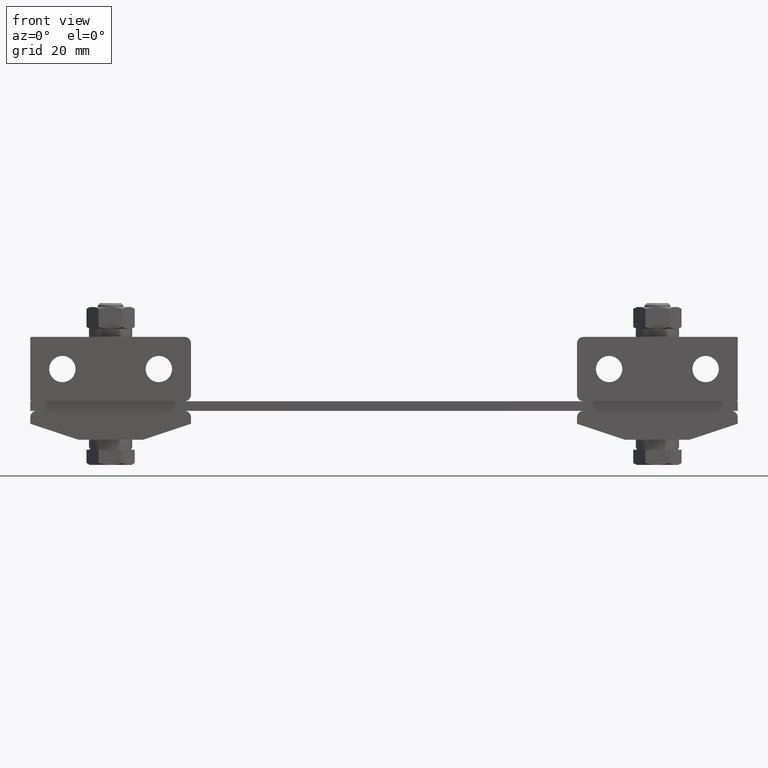
[diagram: clean part render]
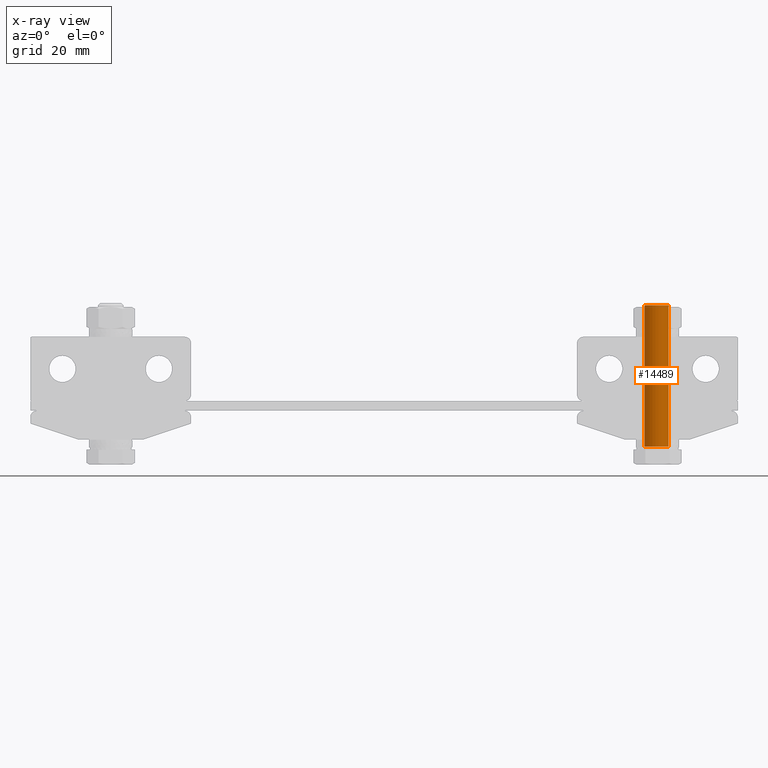
[diagram: x-ray — body ghosted, one internal face saturated and labeled with its STEP entity id]
A machine part, front view, then the same camera in x-ray: the body is ghosted and one INTERNAL B-rep face — a face not visible from any outside direction — is saturated and labeled: STEP entity #14489.
In plain terms, the highlighted cylindrical surface (edge-blend (fillet) strip) has radius 4 mm, axis along (-0, -0, -1).
Its self-contained STEP definition (entity closure, byte-faithful):
#42 = CARTESIAN_POINT ( 'NONE',  ( 81.53589838486225000, 2.000000000000002200, -11.10000000000000000 ) ) ;
#394 = CIRCLE ( 'NONE', #14449, 4.000000000000002700 ) ;
#542 = CARTESIAN_POINT ( 'NONE',  ( 88.46410161513776400, -2.000000000000000400, -16.80000000000000100 ) ) ;
#1694 = LINE ( 'NONE', #542, #11205 ) ;
#2166 = DIRECTION ( 'NONE',  ( -3.328586808465309800E-017, -1.853158120589139800E-016, -1.000000000000000000 ) ) ;
#2167 = VERTEX_POINT ( 'NONE', #3012 ) ;
#2259 = EDGE_CURVE ( 'NONE', #9517, #2701, #19715, .T. ) ;
#2701 = VERTEX_POINT ( 'NONE', #42 ) ;
#3012 = CARTESIAN_POINT ( 'NONE',  ( 88.46410161513776400, -1.999999999999995800, -11.10000000000000000 ) ) ;
#3923 = CARTESIAN_POINT ( 'NONE',  ( 85.00000000000000000, -4.632895301472329700E-016, -16.80000000000000100 ) ) ;
#5284 = FACE_OUTER_BOUND ( 'NONE', #19845, .T. ) ;
#6010 = CYLINDRICAL_SURFACE ( 'NONE', #16608, 4.000000000000002700 ) ;
#6077 = VERTEX_POINT ( 'NONE', #13130 ) ;
#8389 = EDGE_CURVE ( 'NONE', #2701, #2167, #394, .T. ) ;
#8618 = DIRECTION ( 'NONE',  ( -3.328586808465309800E-017, -1.853158120589139800E-016, -1.000000000000000000 ) ) ;
#9053 = ORIENTED_EDGE ( 'NONE', *, *, #9632, .T. ) ;
#9099 = ORIENTED_EDGE ( 'NONE', *, *, #11480, .F. ) ;
#9490 = CARTESIAN_POINT ( 'NONE',  ( 81.53589838486225000, 1.999999999999999100, -16.80000000000000100 ) ) ;
#9517 = VERTEX_POINT ( 'NONE', #17696 ) ;
#9632 = EDGE_CURVE ( 'NONE', #6077, #9517, #9638, .T. ) ;
#9638 = CIRCLE ( 'NONE', #18527, 4.000000000000002700 ) ;
#9833 = DIRECTION ( 'NONE',  ( -3.328586808465310400E-017, -1.853158120589139800E-016, -1.000000000000000000 ) ) ;
#11152 = ORIENTED_EDGE ( 'NONE', *, *, #2259, .T. ) ;
#11205 = VECTOR ( 'NONE', #9833, 1000.000000000000000 ) ;
#11361 = DIRECTION ( 'NONE',  ( 3.328586808465309800E-017, 1.853158120589139800E-016, 1.000000000000000000 ) ) ;
#11480 = EDGE_CURVE ( 'NONE', #6077, #2167, #1694, .T. ) ;
#12136 = ORIENTED_EDGE ( 'NONE', *, *, #8389, .T. ) ;
#12557 = DIRECTION ( 'NONE',  ( -3.328586808465310400E-017, -1.853158120589139800E-016, -1.000000000000000000 ) ) ;
#13130 = CARTESIAN_POINT ( 'NONE',  ( 88.46410161513776400, -1.999999999999991300, 32.80950000000000000 ) ) ;
#13267 = CARTESIAN_POINT ( 'NONE',  ( 85.00000000000000000, 8.730135248189438400E-015, 32.80950000000000000 ) ) ;
#14449 = AXIS2_PLACEMENT_3D ( 'NONE', #17706, #11361, #16060 ) ;
#14489 = ADVANCED_FACE ( 'NONE', ( #5284 ), #6010, .T. ) ;
#14797 = DIRECTION ( 'NONE',  ( 0.8660254037844388200, -0.4999999999999996700, 0.0000000000000000000 ) ) ;
#16060 = DIRECTION ( 'NONE',  ( -0.8660254037844388200, 0.4999999999999996700, 0.0000000000000000000 ) ) ;
#16608 = AXIS2_PLACEMENT_3D ( 'NONE', #3923, #8618, #17988 ) ;
#17696 = CARTESIAN_POINT ( 'NONE',  ( 81.53589838486225000, 2.000000000000004400, 32.80950000000000000 ) ) ;
#17706 = CARTESIAN_POINT ( 'NONE',  ( 85.00000000000000000, 5.930105985885740500E-016, -11.10000000000000000 ) ) ;
#17988 = DIRECTION ( 'NONE',  ( 0.8660254037844388200, -0.4999999999999996700, 0.0000000000000000000 ) ) ;
#18527 = AXIS2_PLACEMENT_3D ( 'NONE', #13267, #2166, #14797 ) ;
#19715 = LINE ( 'NONE', #9490, #19940 ) ;
#19845 = EDGE_LOOP ( 'NONE', ( #9053, #11152, #12136, #9099 ) ) ;
#19940 = VECTOR ( 'NONE', #12557, 1000.000000000000000 ) ;